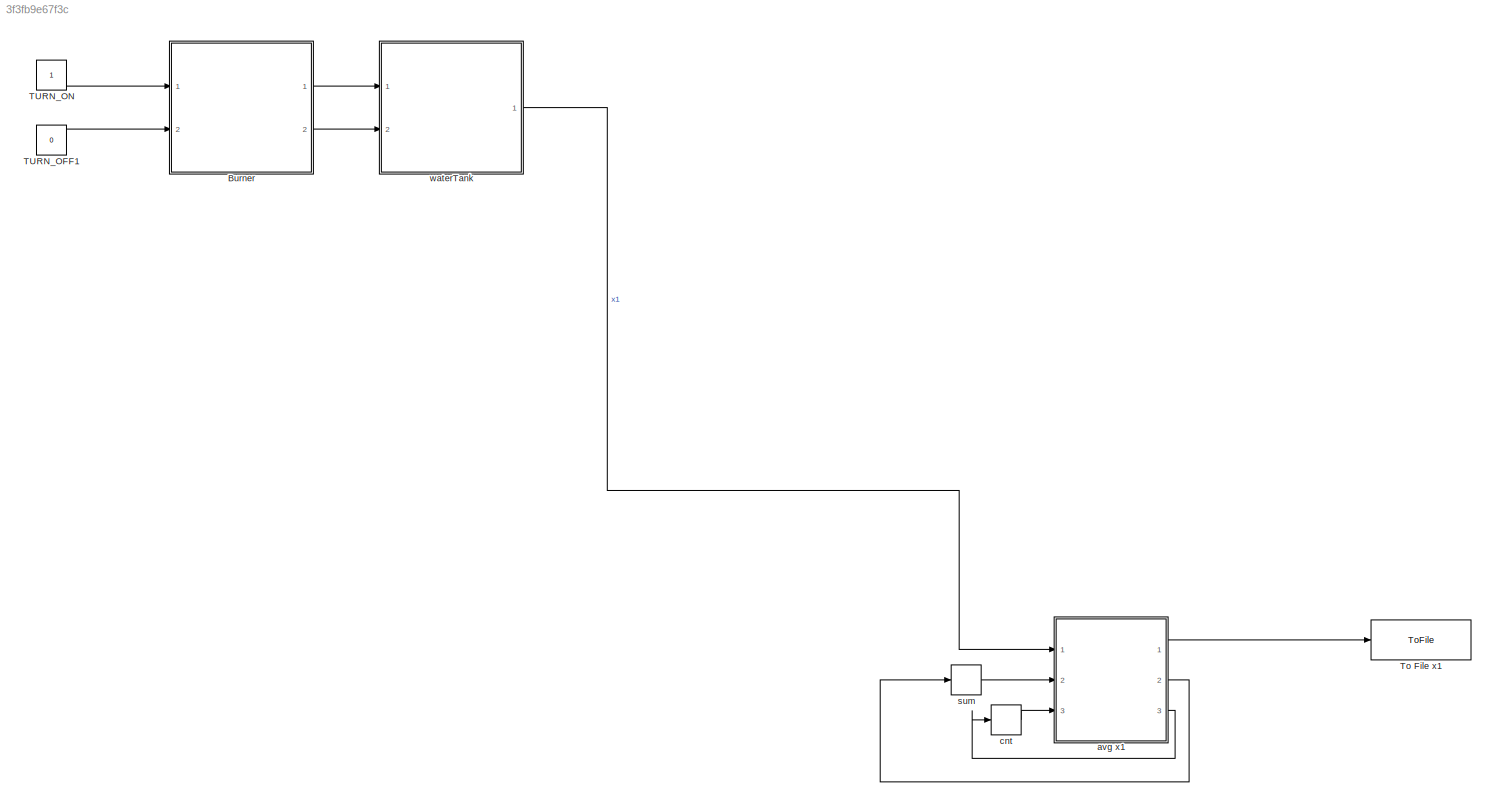
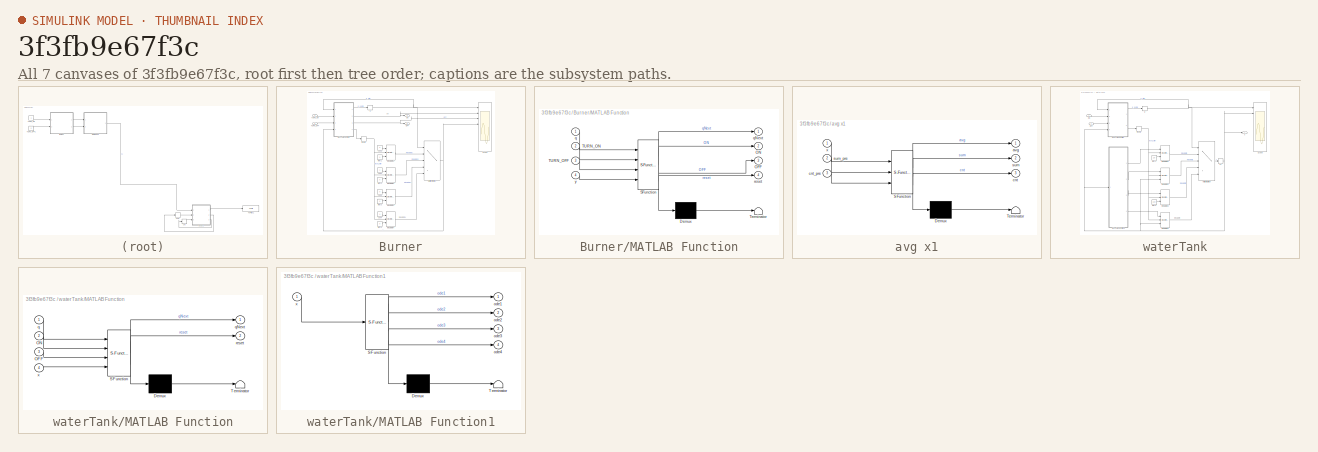
[diagram: thumbnail index - all 7 canvases of the model, root first then tree order]
MODEL slx_3f3fb9e67f3c
KIND model
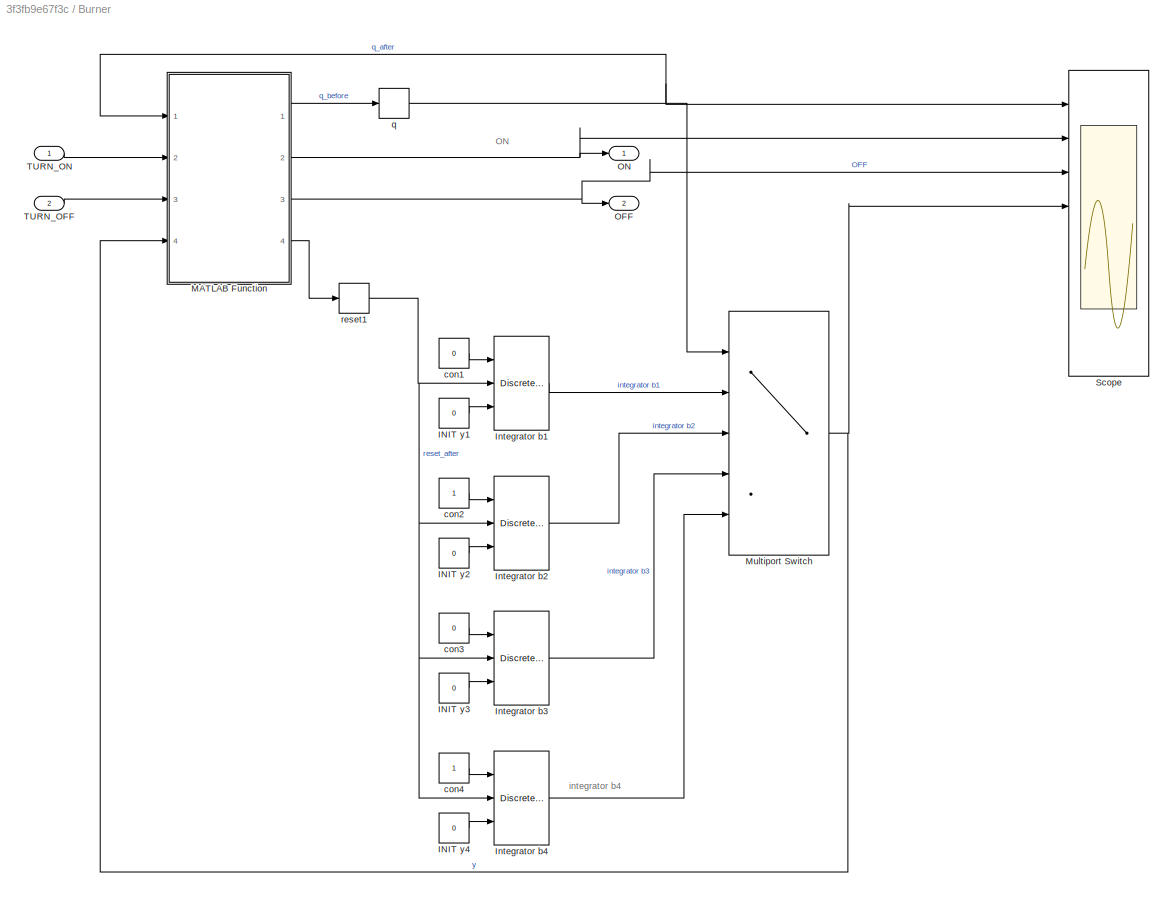
BLOCK [SubSystem] Burner
  Ports = [2, 2]
  RequestExecContextInheritance = off
BLOCK [Constant] Burner/INIT y1
  Value = 0
BLOCK [Constant] Burner/INIT y2
  Value = 0
BLOCK [Constant] Burner/INIT y3
  Value = 0
BLOCK [Constant] Burner/INIT y4
  Value = 0
BLOCK [DiscreteIntegrator] Burner/Integrator b1
  ExternalReset = either
  InitialCondition = 510
  InitialConditionSetting = State (most efficient)
  InitialConditionSource = external
  Ports = [3, 1]
  SampleTime = -1
BLOCK [DiscreteIntegrator] Burner/Integrator b2
  ExternalReset = either
  InitialCondition = 510
  InitialConditionSetting = State (most efficient)
  InitialConditionSource = external
  Ports = [3, 1]
  SampleTime = -1
BLOCK [DiscreteIntegrator] Burner/Integrator b3
  ExternalReset = either
  InitialCondition = 510
  InitialConditionSetting = State (most efficient)
  InitialConditionSource = external
  Ports = [3, 1]
  SampleTime = -1
BLOCK [DiscreteIntegrator] Burner/Integrator b4
  ExternalReset = either
  InitialCondition = 510
  InitialConditionSetting = State (most efficient)
  InitialConditionSource = external
  Ports = [3, 1]
  SampleTime = -1
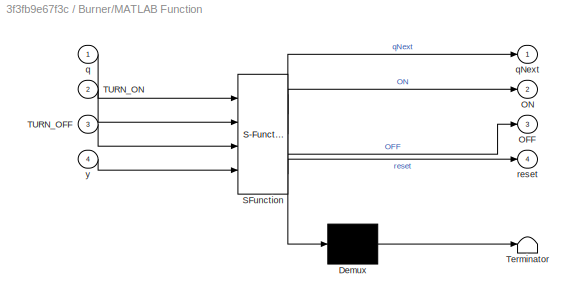
BLOCK [SubSystem] Burner/MATLAB Function
  ErrorFcn = Stateflow.Translate.translate
  PermitHierarchicalResolution = ExplicitOnly
  Ports = [4, 4]
  Priority = 1
  RequestExecContextInheritance = off
  SFBlockType = MATLAB Function
  TreatAsAtomicUnit = on
BLOCK [Demux] Burner/MATLAB Function/ Demux 
  Outputs = 1
  Ports = [1, 1]
BLOCK [S-Function] Burner/MATLAB Function/ SFunction 
  EnableBusSupport = on
  FunctionName = sf_sfun
  PortCounts = [4 5]
  Ports = [4, 5]
  Tag = Stateflow S-Function waterTankBurner 2
BLOCK [Terminator] Burner/MATLAB Function/ Terminator 
BLOCK [Outport] Burner/MATLAB Function/OFF
  IconDisplay = Port number
  Port = 3
BLOCK [Outport] Burner/MATLAB Function/ON
  IconDisplay = Port number
  Port = 2
BLOCK [Inport] Burner/MATLAB Function/TURN_OFF
  IconDisplay = Port number
  Port = 3
BLOCK [Inport] Burner/MATLAB Function/TURN_ON
  IconDisplay = Port number
  Port = 2
BLOCK [Inport] Burner/MATLAB Function/q
  IconDisplay = Port number
BLOCK [Outport] Burner/MATLAB Function/qNext
  IconDisplay = Port number
BLOCK [Outport] Burner/MATLAB Function/reset
  IconDisplay = Port number
  Port = 4
BLOCK [Inport] Burner/MATLAB Function/y
  IconDisplay = Port number
  Port = 4
BLOCK [MultiPortSwitch] Burner/Multiport Switch
  InputSameDT = off
  Inputs = 4
  Ports = [5, 1]
  SaturateOnIntegerOverflow = off
BLOCK [Outport] Burner/OFF
  IconDisplay = Port number
  Port = 2
BLOCK [Outport] Burner/ON
  IconDisplay = Port number
BLOCK [Scope] Burner/Scope
  Floating = off
  LegendLocations = 0.75226     0.93279     0.17388    0.020612\n0.60858     0.81129     0.31756    0.020612\n0.77586     0.68978     0.15028    0.020612\n0.80764     0.56828      0.1185    0.020612\n0.72161     0.44677     0.20453    0.020612\n0.72161     0.32527     0.20453    0.020612\n0.72161     0.20484     0.20453    0.020612\n0.72161    0.083331     0.20453    0.020612
  LimitDataPoints = off
  NumInputPorts = 8
  Ports = [8]
  ShowLegends = on
  TickLabels = on
  YMax = 1~1~1~1~1~1~1~1
  YMin = 0~0~0~0~0~0~0~0
  ZoomMode = xonly
BLOCK [Inport] Burner/TURN_OFF
  IconDisplay = Port number
  Port = 2
BLOCK [Inport] Burner/TURN_ON
  IconDisplay = Port number
BLOCK [Constant] Burner/con1
  Value = 0
BLOCK [Constant] Burner/con2
BLOCK [Constant] Burner/con3
  Value = 0
BLOCK [Constant] Burner/con4
BLOCK [Memory] Burner/q
  LinearizeMemory = on
  X0 = 1
BLOCK [Memory] Burner/reset1
  LinearizeMemory = on
BLOCK [Constant] TURN_OFF1
  Value = 0
BLOCK [Constant] TURN_ON
BLOCK [ToFile] To File x1
  Decimation = 10000000
  Filename = x1Output.mat
  Ports = [1]
BLOCK [SubSystem] avg x1
  ErrorFcn = Stateflow.Translate.translate
  PermitHierarchicalResolution = ExplicitOnly
  Ports = [3, 3]
  RequestExecContextInheritance = off
  SFBlockType = MATLAB Function
  TreatAsAtomicUnit = on
BLOCK [Demux] avg x1/ Demux 
  Outputs = 1
  Ports = [1, 1]
BLOCK [S-Function] avg x1/ SFunction 
  EnableBusSupport = on
  FunctionName = sf_sfun
  PortCounts = [3 4]
  Ports = [3, 4]
  Tag = Stateflow S-Function waterTankBurner 4
BLOCK [Terminator] avg x1/ Terminator 
BLOCK [Outport] avg x1/avg
  IconDisplay = Port number
BLOCK [Outport] avg x1/cnt
  IconDisplay = Port number
  Port = 3
BLOCK [Inport] avg x1/cnt_pre
  IconDisplay = Port number
  Port = 3
BLOCK [Outport] avg x1/sum
  IconDisplay = Port number
  Port = 2
BLOCK [Inport] avg x1/sum_pre
  IconDisplay = Port number
  Port = 2
BLOCK [Inport] avg x1/x
  IconDisplay = Port number
BLOCK [Memory] cnt
BLOCK [Memory] sum
BLOCK [SubSystem] waterTank
  Ports = [2, 1]
  RequestExecContextInheritance = off
BLOCK [Constant] waterTank/INIT y1
  Value = 20
BLOCK [Constant] waterTank/INIT y3
  Value = 100
BLOCK [DiscreteIntegrator] waterTank/Integrator b1
  ExternalReset = either
  InitialCondition = 510
  InitialConditionSetting = State (most efficient)
  InitialConditionSource = external
  Ports = [3, 1]
  SampleTime = -1
BLOCK [DiscreteIntegrator] waterTank/Integrator b2
  ExternalReset = either
  InitialCondition = 510
  InitialConditionSetting = State (most efficient)
  InitialConditionSource = external
  Ports = [3, 1]
  SampleTime = -1
BLOCK [DiscreteIntegrator] waterTank/Integrator b3
  ExternalReset = either
  InitialCondition = 510
  InitialConditionSetting = State (most efficient)
  InitialConditionSource = external
  Ports = [3, 1]
  SampleTime = -1
BLOCK [DiscreteIntegrator] waterTank/Integrator b4
  ExternalReset = either
  InitialCondition = 510
  InitialConditionSetting = State (most efficient)
  InitialConditionSource = external
  Ports = [3, 1]
  SampleTime = -1
BLOCK [SubSystem] waterTank/MATLAB Function
  ErrorFcn = Stateflow.Translate.translate
  PermitHierarchicalResolution = ExplicitOnly
  Ports = [4, 2]
  Priority = 1
  RequestExecContextInheritance = off
  SFBlockType = MATLAB Function
  TreatAsAtomicUnit = on
BLOCK [Demux] waterTank/MATLAB Function/ Demux 
  Outputs = 1
  Ports = [1, 1]
BLOCK [S-Function] waterTank/MATLAB Function/ SFunction 
  EnableBusSupport = on
  FunctionName = sf_sfun
  PortCounts = [4 3]
  Ports = [4, 3]
  Tag = Stateflow S-Function waterTankBurner 1
BLOCK [Terminator] waterTank/MATLAB Function/ Terminator 
BLOCK [Inport] waterTank/MATLAB Function/OFF
  IconDisplay = Port number
  Port = 3
BLOCK [Inport] waterTank/MATLAB Function/ON
  IconDisplay = Port number
  Port = 2
BLOCK [Inport] waterTank/MATLAB Function/q
  IconDisplay = Port number
BLOCK [Outport] waterTank/MATLAB Function/qNext
  IconDisplay = Port number
BLOCK [Outport] waterTank/MATLAB Function/reset
  IconDisplay = Port number
  Port = 2
BLOCK [Inport] waterTank/MATLAB Function/x
  IconDisplay = Port number
  Port = 4
BLOCK [SubSystem] waterTank/MATLAB Function1
  ErrorFcn = Stateflow.Translate.translate
  PermitHierarchicalResolution = ExplicitOnly
  Ports = [1, 4]
  RequestExecContextInheritance = off
  SFBlockType = MATLAB Function
  TreatAsAtomicUnit = on
BLOCK [Demux] waterTank/MATLAB Function1/ Demux 
  Outputs = 1
  Ports = [1, 1]
BLOCK [S-Function] waterTank/MATLAB Function1/ SFunction 
  EnableBusSupport = on
  FunctionName = sf_sfun
  PortCounts = [1 5]
  Ports = [1, 5]
  Tag = Stateflow S-Function waterTankBurner 3
BLOCK [Terminator] waterTank/MATLAB Function1/ Terminator 
BLOCK [Outport] waterTank/MATLAB Function1/ode1
  IconDisplay = Port number
BLOCK [Outport] waterTank/MATLAB Function1/ode2
  IconDisplay = Port number
  Port = 2
BLOCK [Outport] waterTank/MATLAB Function1/ode3
  IconDisplay = Port number
  Port = 3
BLOCK [Outport] waterTank/MATLAB Function1/ode4
  IconDisplay = Port number
  Port = 4
BLOCK [Inport] waterTank/MATLAB Function1/x
  IconDisplay = Port number
BLOCK [MultiPortSwitch] waterTank/Multiport Switch
  InputSameDT = off
  Inputs = 4
  Ports = [5, 1]
  SaturateOnIntegerOverflow = off
BLOCK [Inport] waterTank/OFF
  IconDisplay = Port number
  Port = 2
BLOCK [Inport] waterTank/ON
  IconDisplay = Port number
BLOCK [Scope] waterTank/Scope
  Floating = off
  LimitDataPoints = off
  NumInputPorts = 8
  Ports = [8]
  ShowLegends = on
  TickLabels = on
  YMax = 1~1~1~1~1~1~1~1
  YMin = 0~0~0~0~0~0~0~0
  ZoomMode = xonly
BLOCK [Memory] waterTank/q
  LinearizeMemory = on
  X0 = 1
BLOCK [Memory] waterTank/reset1
  LinearizeMemory = on
BLOCK [Outport] waterTank/x
  IconDisplay = Port number
BLOCK [Memory] waterTank/xx
  LinearizeMemory = on
ANNOTATION Burner: ON
ANNOTATION Burner: integrator b4
ANNOTATION waterTank: integrator t4
LINE Burner/INIT y1:1 -> Burner/Integrator b1:3
LINE Burner/INIT y2:1 -> Burner/Integrator b2:3
LINE Burner/INIT y3:1 -> Burner/Integrator b3:3
LINE Burner/INIT y4:1 -> Burner/Integrator b4:3
LINE Burner/Integrator b1:1 -> Burner/Multiport Switch:2
LINE Burner/Integrator b2:1 -> Burner/Multiport Switch:3
LINE Burner/Integrator b3:1 -> Burner/Multiport Switch:4
LINE Burner/Integrator b4:1 -> Burner/Multiport Switch:5
LINE Burner/MATLAB Function:1 -> Burner/q:1
NET Burner/MATLAB Function:2 -> Burner/ON:1, Burner/Scope:2
NET Burner/MATLAB Function:3 -> Burner/OFF:1, Burner/Scope:3
LINE Burner/MATLAB Function:4 -> Burner/reset1:1
NET Burner/Multiport Switch:1 -> Burner/MATLAB Function:4, Burner/Scope:4
LINE Burner/TURN_OFF:1 -> Burner/MATLAB Function:3
LINE Burner/TURN_ON:1 -> Burner/MATLAB Function:2
LINE Burner/con1:1 -> Burner/Integrator b1:1
LINE Burner/con2:1 -> Burner/Integrator b2:1
LINE Burner/con3:1 -> Burner/Integrator b3:1
LINE Burner/con4:1 -> Burner/Integrator b4:1
NET Burner/q:1 -> Burner/MATLAB Function:1, Burner/Multiport Switch:1, Burner/Scope:1
NET Burner/reset1:1 -> Burner/Integrator b1:2, Burner/Integrator b2:2, Burner/Integrator b3:2, Burner/Integrator b4:2
LINE Burner:1 -> waterTank:1
LINE Burner:2 -> waterTank:2
LINE TURN_OFF1:1 -> Burner:2
LINE TURN_ON:1 -> Burner:1
LINE avg x1:1 -> To File x1:1
LINE avg x1:2 -> sum:1
LINE avg x1:3 -> cnt:1
LINE cnt:1 -> avg x1:3
LINE sum:1 -> avg x1:2
LINE waterTank/INIT y1:1 -> waterTank/Integrator b1:3
LINE waterTank/INIT y3:1 -> waterTank/Integrator b3:3
LINE waterTank/Integrator b1:1 -> waterTank/Multiport Switch:2
LINE waterTank/Integrator b2:1 -> waterTank/Multiport Switch:3
LINE waterTank/Integrator b3:1 -> waterTank/Multiport Switch:4
LINE waterTank/Integrator b4:1 -> waterTank/Multiport Switch:5
LINE waterTank/MATLAB Function1:1 -> waterTank/Integrator b1:1
LINE waterTank/MATLAB Function1:2 -> waterTank/Integrator b2:1
LINE waterTank/MATLAB Function1:3 -> waterTank/Integrator b3:1
LINE waterTank/MATLAB Function1:4 -> waterTank/Integrator b4:1
LINE waterTank/MATLAB Function:1 -> waterTank/q:1
LINE waterTank/MATLAB Function:2 -> waterTank/reset1:1
LINE waterTank/Multiport Switch:1 -> waterTank/xx:1
LINE waterTank/OFF:1 -> waterTank/MATLAB Function:3
LINE waterTank/ON:1 -> waterTank/MATLAB Function:2
NET waterTank/q:1 -> waterTank/MATLAB Function:1, waterTank/Multiport Switch:1, waterTank/Scope:1
NET waterTank/reset1:1 -> waterTank/Integrator b1:2, waterTank/Integrator b2:2, waterTank/Integrator b3:2, waterTank/Integrator b4:2
NET waterTank/xx:1 -> waterTank/Integrator b2:3, waterTank/Integrator b4:3, waterTank/MATLAB Function1:1, waterTank/MATLAB Function:4, waterTank/Scope:2, waterTank/x:1
LINE waterTank:1 -> avg x1:1
note: NET lines group one-source signal fan-out (src -> all destinations, sorted); 1:1 wires keep LINE
CHART waterTank/MATLAB Function states=1 transitions=1
  STATE_LABEL 'eML_blk_kernel()'
  STATE_LABEL 'SCRIPT:\n\n\nfunction [qNext,reset]  = phi(q,  ON, OFF,x)\n%#codegen\n\n\nif q==1 % q=1, tank is in t1\n    if ON==0\n        qNext=1;\n        reset=0;\n    elseif ON==1\n        qNext=2;\n        reset=1;\n    else\n        qNext=-1;\n        reset=-1;\n    end;\n    \nelseif q==2 % q=2, tank is in t2\n    if x<100 && OFF==0\n        qNext=2;\n        reset=0;\n    elseif x>=100\n        qNext=3;\n        reset=1;\n    e...<+652ch>'
CHART Burner/MATLAB Function states=1 transitions=1
  STATE_LABEL 'eML_blk_kernel()'
  STATE_LABEL 'SCRIPT:\n\n\nfunction [qNext,ON,OFF,reset]  = phi(q,  TURN_ON, TURN_OFF,y)\n%#codegen\n\n\nif q==1 % q=1, burner is in state b1\n    if TURN_ON==0\n        qNext=1;\n        reset=0;\n        ON=0;\n        OFF=0;\n    elseif TURN_ON==1\n        qNext=2;\n        reset=1;\n        ON=0;\n        OFF=0;\n    else\n        qNext=-1;\n        reset=-1;\n        ON=-1;\n        OFF=-1;\n    end;\n    \nelseif q==2 % q=2, burn...<+1048ch>'
CHART waterTank/MATLAB Function1 states=1 transitions=1
  STATE_LABEL 'eML_blk_kernel()'
  STATE_LABEL 'SCRIPT:\nfunction [ode1,ode2,ode3,ode4] = ODEs(x)\n%#codegen\nK=0.075;\nh=150;\node1=0;\node2=K*(h-x);\node3=0;\node4=-K*x;\n'
CHART avg x1 states=1 transitions=1
  STATE_LABEL 'eML_blk_kernel()'
  STATE_LABEL 'SCRIPT:\nfunction [avg, sum,cnt] = fcn(x,  sum_pre, cnt_pre)\n%#codegen\n\ncnt=cnt_pre+1;\nsum=sum_pre+x;\navg=sum/cnt;\n'
